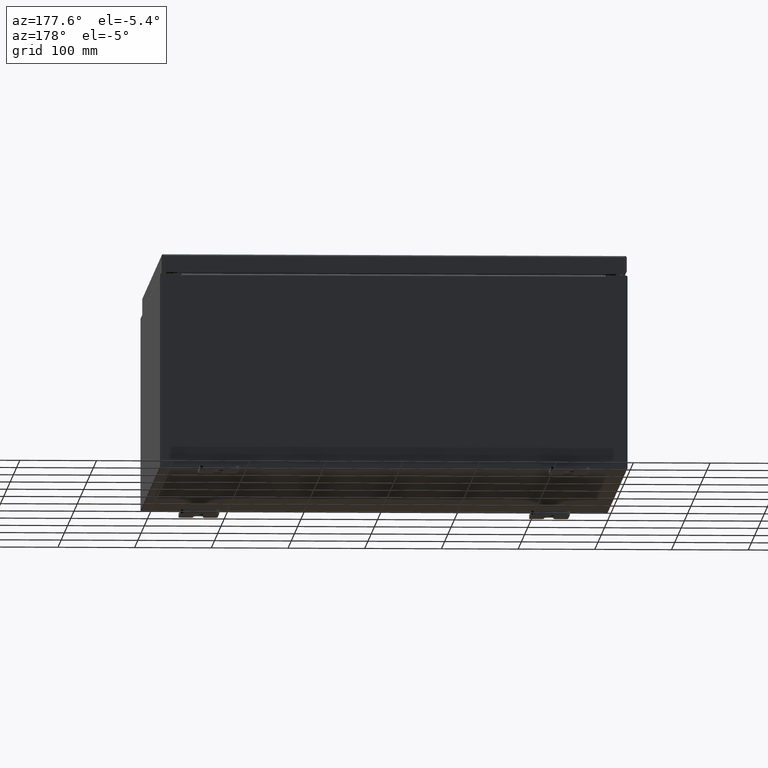
[diagram: clean part render]
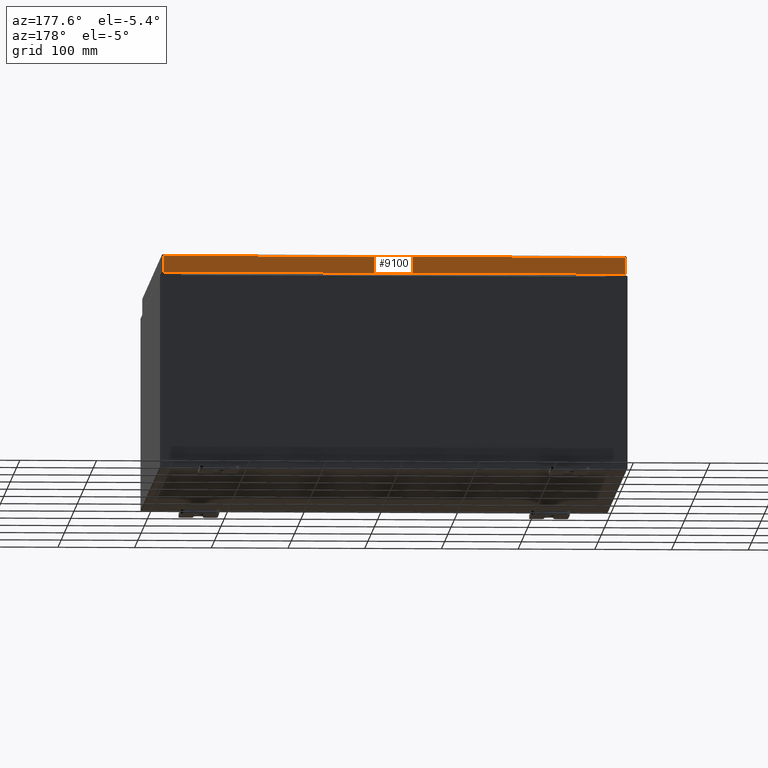
[diagram: same view with one face highlighted and labeled with its STEP entity id]
A machine part, auxiliary view. The second image highlights one B-rep face of the part: STEP entity #9100.
In plain terms, the highlighted planar face has unit normal (0, -1, -0).
Its self-contained STEP definition (entity closure, byte-faithful):
#1543 = LINE ( 'NONE', #55147, #14582 ) ;
#3763 = DIRECTION ( 'NONE',  ( 3.187436615351995300E-031, -1.000000000000000000, -2.532419924601857400E-015 ) ) ;
#5262 = ORIENTED_EDGE ( 'NONE', *, *, #27485, .T. ) ;
#6579 = CARTESIAN_POINT ( 'NONE',  ( -11.84865786437626600, 11.93750000000000000, -0.08769999999999898700 ) ) ;
#7891 = FACE_OUTER_BOUND ( 'NONE', #50704, .T. ) ;
#8515 = VERTEX_POINT ( 'NONE', #24232 ) ;
#9100 = ADVANCED_FACE ( 'NONE', ( #7891 ), #57644, .F. ) ;
#10110 = LINE ( 'NONE', #56477, #46272 ) ;
#10694 = DIRECTION ( 'NONE',  ( -0.0000000000000000000, 2.532419924601857400E-015, -1.000000000000000000 ) ) ;
#12523 = ORIENTED_EDGE ( 'NONE', *, *, #30389, .F. ) ;
#13412 = CARTESIAN_POINT ( 'NONE',  ( -3.805002459576444600E-030, 11.93750000000000000, 3.049157650594625800E-014 ) ) ;
#14283 = CARTESIAN_POINT ( 'NONE',  ( -11.84865786437626600, 11.93750000000000200, -0.9377000000000028600 ) ) ;
#14582 = VECTOR ( 'NONE', #10694, 39.37007874015748100 ) ;
#17749 = VECTOR ( 'NONE', #28361, 39.37007874015748100 ) ;
#18869 = CARTESIAN_POINT ( 'NONE',  ( -11.93749999999999800, 11.93750000000000000, -0.08770000000000008300 ) ) ;
#21913 = DIRECTION ( 'NONE',  ( 1.000000000000000000, -4.379057701015054300E-047, 1.258652478756310100E-016 ) ) ;
#23863 = VERTEX_POINT ( 'NONE', #14283 ) ;
#24232 = CARTESIAN_POINT ( 'NONE',  ( 11.84865786437626900, 11.93750000000000000, -0.08769999999999789100 ) ) ;
#27485 = EDGE_CURVE ( 'NONE', #8515, #59303, #52532, .T. ) ;
#27983 = VECTOR ( 'NONE', #62832, 39.37007874015748100 ) ;
#28361 = DIRECTION ( 'NONE',  ( -1.000000000000000000, -8.693008950959990500E-032, -9.153836209136798400E-017 ) ) ;
#30389 = EDGE_CURVE ( 'NONE', #8515, #45918, #55403, .T. ) ;
#31516 = EDGE_CURVE ( 'NONE', #45918, #23863, #1543, .T. ) ;
#33090 = CARTESIAN_POINT ( 'NONE',  ( 11.84865786437626900, 11.93750000000000200, -0.9376999999999997600 ) ) ;
#38188 = DIRECTION ( 'NONE',  ( 0.0000000000000000000, 2.532419924601857400E-015, -1.000000000000000000 ) ) ;
#38481 = ORIENTED_EDGE ( 'NONE', *, *, #31516, .F. ) ;
#45918 = VERTEX_POINT ( 'NONE', #6579 ) ;
#46272 = VECTOR ( 'NONE', #21913, 39.37007874015748100 ) ;
#48413 = EDGE_CURVE ( 'NONE', #23863, #59303, #10110, .T. ) ;
#50193 = ORIENTED_EDGE ( 'NONE', *, *, #48413, .F. ) ;
#50704 = EDGE_LOOP ( 'NONE', ( #12523, #5262, #50193, #38481 ) ) ;
#52532 = LINE ( 'NONE', #53069, #27983 ) ;
#53069 = CARTESIAN_POINT ( 'NONE',  ( 11.84865786437626900, 11.93750000000000000, 3.049157650594625800E-014 ) ) ;
#55147 = CARTESIAN_POINT ( 'NONE',  ( -11.84865786437626600, 11.93750000000000000, -0.07469999999999980800 ) ) ;
#55403 = LINE ( 'NONE', #18869, #17749 ) ;
#56477 = CARTESIAN_POINT ( 'NONE',  ( -11.93749999999999800, 11.93750000000000200, -0.9377000000000028600 ) ) ;
#57644 = PLANE ( 'NONE',  #58420 ) ;
#58420 = AXIS2_PLACEMENT_3D ( 'NONE', #13412, #3763, #38188 ) ;
#59303 = VERTEX_POINT ( 'NONE', #33090 ) ;
#62832 = DIRECTION ( 'NONE',  ( 0.0000000000000000000, 2.532419924601857400E-015, -1.000000000000000000 ) ) ;